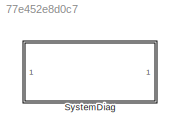
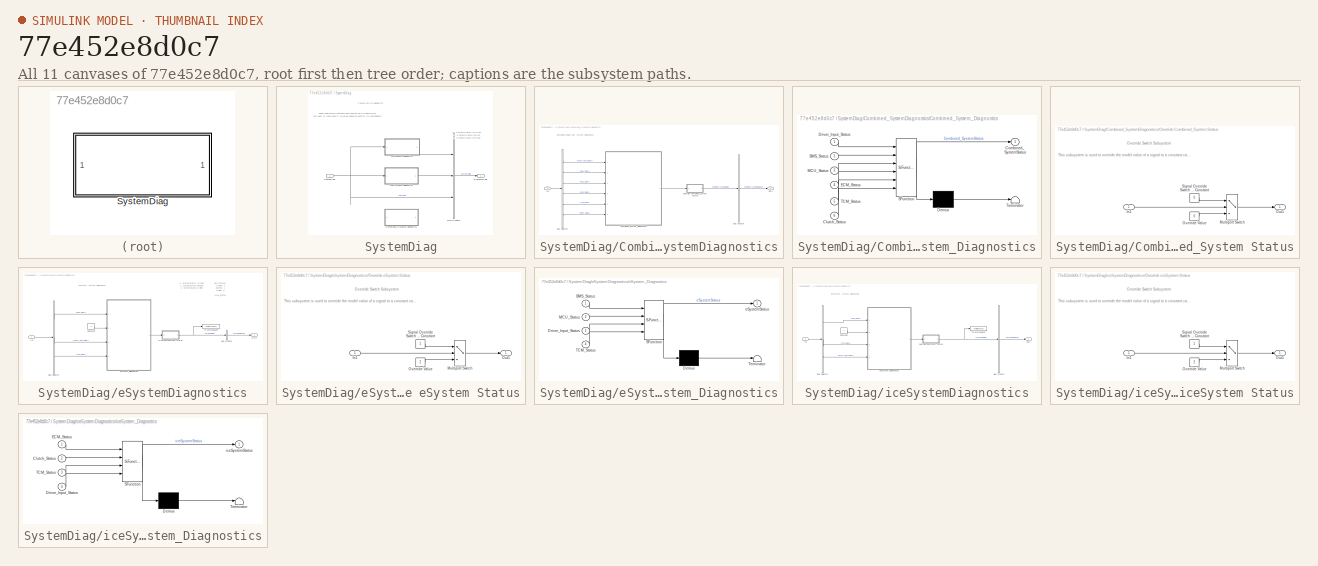
[diagram: thumbnail index - all 11 canvases of the model, root first then tree order]
MODEL slx_77e452e8d0c7
KIND library
CONFIG AbsTol = auto
CONFIG EnableMultiTasking = off
CONFIG FixedStep = auto
CONFIG MaxStep = auto
CONFIG MinStep = auto
CONFIG RelTol = 1e-3
CONFIG SampleTimeConstraint = Unconstrained
CONFIG Solver = VariableStepAuto
CONFIG SolverName = VariableStepAuto
CONFIG StartTime = 0.0
CONFIG StopTime = 10.0
BLOCK [SubSystem] SystemDiag
  Ports = [1, 1]
  RequestExecContextInheritance = off
  Variant = off
BLOCK [BusCreator] SystemDiag/Bus Creator
  DisplayOption = bar
  InheritFromInputs = on
  Inputs = 3
  Ports = [3, 1]
BLOCK [SubSystem] SystemDiag/Combined_SystemDiagnostics
  Commented = through
  Ports = [1, 1]
  RequestExecContextInheritance = off
  Variant = off
BLOCK [BusCreator] SystemDiag/Combined_SystemDiagnostics/Bus Creator
  DisplayOption = bar
  InheritFromInputs = on
  Inputs = 1
  Ports = [1, 1]
BLOCK [BusSelector] SystemDiag/Combined_SystemDiagnostics/Bus Selector
  OutputAsBus = off
  OutputSignals = Driver_Input_Status.Driver_Input_Status,BMS_Status.BMS_Status,MCU_Status.MCU_Status,ECM_Status.ECM_Status,TCM_CompDiag.TCM_Status,Clutch_Status.Clutch_Status
  Ports = [1, 6]
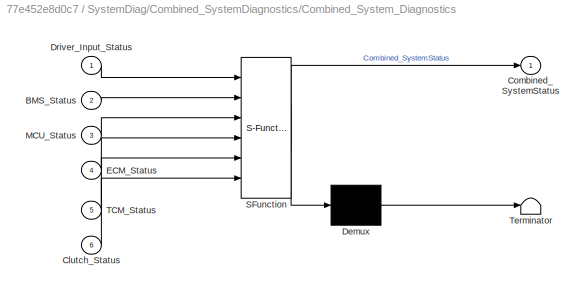
BLOCK [SubSystem] SystemDiag/Combined_SystemDiagnostics/Combined_System_Diagnostics
  ErrorFcn = Stateflow.Translate.translate
  PermitHierarchicalResolution = ExplicitOnly
  Ports = [6, 1]
  RequestExecContextInheritance = off
  SFBlockType = Chart
  TreatAsAtomicUnit = on
  Variant = off
BLOCK [Demux] SystemDiag/Combined_SystemDiagnostics/Combined_System_Diagnostics/ Demux 
  Outputs = 1
  Ports = [1, 1]
BLOCK [S-Function] SystemDiag/Combined_SystemDiagnostics/Combined_System_Diagnostics/ SFunction 
  EnableBusSupport = off
  FunctionName = sf_sfun
  PortCounts = [6 2]
  Ports = [6, 2]
  SFcnIsStateOwnerBlock = off
  SFunctionDeploymentMode = off
  Tag = Stateflow S-Function lib_SystemDiag 4
BLOCK [Terminator] SystemDiag/Combined_SystemDiagnostics/Combined_System_Diagnostics/ Terminator 
BLOCK [Inport] SystemDiag/Combined_SystemDiagnostics/Combined_System_Diagnostics/BMS_Status
  IconDisplay = Port number
  Port = 2
BLOCK [Inport] SystemDiag/Combined_SystemDiagnostics/Combined_System_Diagnostics/Clutch_Status
  IconDisplay = Port number
  Port = 6
BLOCK [Outport] SystemDiag/Combined_SystemDiagnostics/Combined_System_Diagnostics/Combined_SystemStatus
  IconDisplay = Port number
BLOCK [Inport] SystemDiag/Combined_SystemDiagnostics/Combined_System_Diagnostics/Driver_Input_Status
  IconDisplay = Port number
BLOCK [Inport] SystemDiag/Combined_SystemDiagnostics/Combined_System_Diagnostics/ECM_Status
  IconDisplay = Port number
  Port = 4
BLOCK [Inport] SystemDiag/Combined_SystemDiagnostics/Combined_System_Diagnostics/MCU_Status
  IconDisplay = Port number
  Port = 3
BLOCK [Inport] SystemDiag/Combined_SystemDiagnostics/Combined_System_Diagnostics/TCM_Status
  IconDisplay = Port number
  Port = 5
BLOCK [Inport] SystemDiag/Combined_SystemDiagnostics/In1
  IconDisplay = Port number
BLOCK [Outport] SystemDiag/Combined_SystemDiagnostics/Out1
  IconDisplay = Port number
BLOCK [SubSystem] SystemDiag/Combined_SystemDiagnostics/Override Combined_System Status
  Ports = [1, 1]
  RequestExecContextInheritance = off
  Variant = off
BLOCK [Inport] SystemDiag/Combined_SystemDiagnostics/Override Combined_System Status/In1
  IconDisplay = Port number
BLOCK [MultiPortSwitch] SystemDiag/Combined_SystemDiagnostics/Override Combined_System Status/Multiport Switch
  DataPortOrder = Zero-based contiguous
  InputSameDT = off
  Inputs = 2
  Ports = [3, 1]
  SaturateOnIntegerOverflow = off
  zeroidx = on
BLOCK [Outport] SystemDiag/Combined_SystemDiagnostics/Override Combined_System Status/Out1
  IconDisplay = Port number
BLOCK [Constant] SystemDiag/Combined_SystemDiagnostics/Override Combined_System Status/Override Value
  OutDataTypeStr = double
  Value = 0
BLOCK [Constant] SystemDiag/Combined_SystemDiagnostics/Override Combined_System Status/Signal Override Switch 0 = Use Model 1 = Use Constant
  Value = 0
BLOCK [Inport] SystemDiag/CompDiag
  IconDisplay = Port number
BLOCK [Outport] SystemDiag/SystemDiag
  IconDisplay = Port number
BLOCK [SubSystem] SystemDiag/eSystemDiagnostics
  Ports = [1, 1]
  RequestExecContextInheritance = off
  Variant = off
BLOCK [BusCreator] SystemDiag/eSystemDiagnostics/Bus Creator
  DisplayOption = bar
  InheritFromInputs = on
  Inputs = 1
  Ports = [1, 1]
BLOCK [BusSelector] SystemDiag/eSystemDiagnostics/Bus Selector
  OutputAsBus = off
  OutputSignals = BMS_Status,Driver_Input_Status,TCM_Status
  Ports = [1, 3]
BLOCK [Constant] SystemDiag/eSystemDiagnostics/Constant
  Value = 2
BLOCK [Inport] SystemDiag/eSystemDiagnostics/In1
  IconDisplay = Port number
BLOCK [Outport] SystemDiag/eSystemDiagnostics/Out1
  IconDisplay = Port number
BLOCK [SubSystem] SystemDiag/eSystemDiagnostics/Override eSystem Status
  Ports = [1, 1]
  RequestExecContextInheritance = off
  Variant = off
BLOCK [Inport] SystemDiag/eSystemDiagnostics/Override eSystem Status/In1
  IconDisplay = Port number
BLOCK [MultiPortSwitch] SystemDiag/eSystemDiagnostics/Override eSystem Status/Multiport Switch
  DataPortOrder = Zero-based contiguous
  InputSameDT = off
  Inputs = 2
  Ports = [3, 1]
  SaturateOnIntegerOverflow = off
  zeroidx = on
BLOCK [Outport] SystemDiag/eSystemDiagnostics/Override eSystem Status/Out1
  IconDisplay = Port number
BLOCK [Constant] SystemDiag/eSystemDiagnostics/Override eSystem Status/Override Value
  OutDataTypeStr = double
  Value = 2
BLOCK [Constant] SystemDiag/eSystemDiagnostics/Override eSystem Status/Signal Override Switch 0 = Use Model 1 = Use Constant
BLOCK [ToWorkspace] SystemDiag/eSystemDiagnostics/To Workspace2
  FixptAsFi = on
  MaxDataPoints = inf
  Ports = [1]
  SampleTime = -1
  Save2DSignal = 3-D array (concatenate along third dimension)
  SaveFormat = Timeseries
  VariableName = eSystemStatus
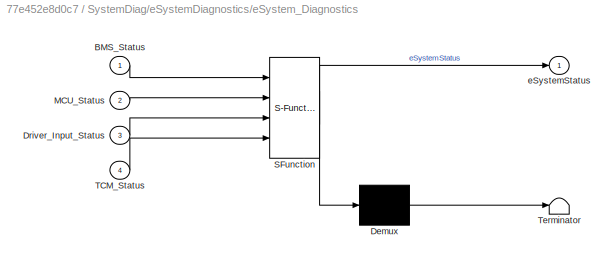
BLOCK [SubSystem] SystemDiag/eSystemDiagnostics/eSystem_Diagnostics
  ErrorFcn = Stateflow.Translate.translate
  PermitHierarchicalResolution = ExplicitOnly
  Ports = [4, 1]
  RequestExecContextInheritance = off
  SFBlockType = Chart
  TreatAsAtomicUnit = on
  Variant = off
BLOCK [Demux] SystemDiag/eSystemDiagnostics/eSystem_Diagnostics/ Demux 
  Outputs = 1
  Ports = [1, 1]
BLOCK [S-Function] SystemDiag/eSystemDiagnostics/eSystem_Diagnostics/ SFunction 
  EnableBusSupport = off
  FunctionName = sf_sfun
  PortCounts = [4 2]
  Ports = [4, 2]
  SFcnIsStateOwnerBlock = off
  SFunctionDeploymentMode = off
  Tag = Stateflow S-Function lib_SystemDiag 9
BLOCK [Terminator] SystemDiag/eSystemDiagnostics/eSystem_Diagnostics/ Terminator 
BLOCK [Inport] SystemDiag/eSystemDiagnostics/eSystem_Diagnostics/BMS_Status
  IconDisplay = Port number
BLOCK [Inport] SystemDiag/eSystemDiagnostics/eSystem_Diagnostics/Driver_Input_Status
  IconDisplay = Port number
  Port = 3
BLOCK [Inport] SystemDiag/eSystemDiagnostics/eSystem_Diagnostics/MCU_Status
  IconDisplay = Port number
  Port = 2
BLOCK [Inport] SystemDiag/eSystemDiagnostics/eSystem_Diagnostics/TCM_Status
  IconDisplay = Port number
  Port = 4
BLOCK [Outport] SystemDiag/eSystemDiagnostics/eSystem_Diagnostics/eSystemStatus
  IconDisplay = Port number
BLOCK [SubSystem] SystemDiag/iceSystemDiagnostics
  Ports = [1, 1]
  RequestExecContextInheritance = off
  Variant = off
BLOCK [BusCreator] SystemDiag/iceSystemDiagnostics/Bus Creator
  DisplayOption = bar
  InheritFromInputs = on
  Inputs = 1
  Ports = [1, 1]
BLOCK [BusSelector] SystemDiag/iceSystemDiagnostics/Bus Selector
  OutputAsBus = off
  OutputSignals = ECM_Status,TCM_Status,Driver_Input_Status
  Ports = [1, 3]
BLOCK [Constant] SystemDiag/iceSystemDiagnostics/Constant
BLOCK [Inport] SystemDiag/iceSystemDiagnostics/In1
  IconDisplay = Port number
BLOCK [Outport] SystemDiag/iceSystemDiagnostics/Out1
  IconDisplay = Port number
BLOCK [SubSystem] SystemDiag/iceSystemDiagnostics/Override iceSystem Status
  Ports = [1, 1]
  RequestExecContextInheritance = off
  Variant = off
BLOCK [Inport] SystemDiag/iceSystemDiagnostics/Override iceSystem Status/In1
  IconDisplay = Port number
BLOCK [MultiPortSwitch] SystemDiag/iceSystemDiagnostics/Override iceSystem Status/Multiport Switch
  DataPortOrder = Zero-based contiguous
  InputSameDT = off
  Inputs = 2
  Ports = [3, 1]
  SaturateOnIntegerOverflow = off
  zeroidx = on
BLOCK [Outport] SystemDiag/iceSystemDiagnostics/Override iceSystem Status/Out1
  IconDisplay = Port number
BLOCK [Constant] SystemDiag/iceSystemDiagnostics/Override iceSystem Status/Override Value
  OutDataTypeStr = double
  Value = 2
BLOCK [Constant] SystemDiag/iceSystemDiagnostics/Override iceSystem Status/Signal Override Switch 0 = Use Model 1 = Use Constant
BLOCK [ToWorkspace] SystemDiag/iceSystemDiagnostics/To Workspace2
  FixptAsFi = on
  MaxDataPoints = inf
  Ports = [1]
  SampleTime = -1
  Save2DSignal = 3-D array (concatenate along third dimension)
  SaveFormat = Timeseries
  VariableName = iceSystemStatus
BLOCK [SubSystem] SystemDiag/iceSystemDiagnostics/iceSystem_Diagnostics
  ErrorFcn = Stateflow.Translate.translate
  PermitHierarchicalResolution = ExplicitOnly
  Ports = [4, 1]
  RequestExecContextInheritance = off
  SFBlockType = Chart
  TreatAsAtomicUnit = on
  Variant = off
BLOCK [Demux] SystemDiag/iceSystemDiagnostics/iceSystem_Diagnostics/ Demux 
  Outputs = 1
  Ports = [1, 1]
BLOCK [S-Function] SystemDiag/iceSystemDiagnostics/iceSystem_Diagnostics/ SFunction 
  EnableBusSupport = off
  FunctionName = sf_sfun
  PortCounts = [4 2]
  Ports = [4, 2]
  SFcnIsStateOwnerBlock = off
  SFunctionDeploymentMode = off
  Tag = Stateflow S-Function lib_SystemDiag 12
BLOCK [Terminator] SystemDiag/iceSystemDiagnostics/iceSystem_Diagnostics/ Terminator 
BLOCK [Inport] SystemDiag/iceSystemDiagnostics/iceSystem_Diagnostics/Clutch_Status
  IconDisplay = Port number
  Port = 2
BLOCK [Inport] SystemDiag/iceSystemDiagnostics/iceSystem_Diagnostics/Driver_Input_Status
  IconDisplay = Port number
  Port = 4
BLOCK [Inport] SystemDiag/iceSystemDiagnostics/iceSystem_Diagnostics/ECM_Status
  IconDisplay = Port number
BLOCK [Inport] SystemDiag/iceSystemDiagnostics/iceSystem_Diagnostics/TCM_Status
  IconDisplay = Port number
  Port = 3
BLOCK [Outport] SystemDiag/iceSystemDiagnostics/iceSystem_Diagnostics/iceSystemStatus
  IconDisplay = Port number
ANNOTATION SystemDiag: 0: SystemStatus: Offline 1: SystemStatus Online 2: SystemStatus Limited
ANNOTATION SystemDiag: Powertrain Diagnostics
ANNOTATION SystemDiag: These subsystems evaluate each powertrain to determine the level of functionality allowed based on each of its components.
ANNOTATION SystemDiag/Combined_SystemDiagnostics: Combined_Powertrain: System Diagnostics
ANNOTATION SystemDiag/Combined_SystemDiagnostics/Override Combined_System Status: Override Switch Subsystem
ANNOTATION SystemDiag/Combined_SystemDiagnostics/Override Combined_System Status: This subsystem is used to override the model value of a signal to a constant value
ANNOTATION SystemDiag/eSystemDiagnostics: 0: SystemStatus: Offline 1: SystemStatus Limited 2: SystemStatus Online
ANNOTATION SystemDiag/eSystemDiagnostics: BMS_Status: Offline: 0 Limited: 1 Online: 2 MCU_Status Offline: 0 Limited: 1 Online :2
ANNOTATION SystemDiag/eSystemDiagnostics: eSystem: System Diagnostics
ANNOTATION SystemDiag/eSystemDiagnostics/Override eSystem Status: Override Switch Subsystem
ANNOTATION SystemDiag/eSystemDiagnostics/Override eSystem Status: This subsystem is used to override the model value of a signal to a constant value
ANNOTATION SystemDiag/iceSystemDiagnostics: iceSystem: System Diagnostics
ANNOTATION SystemDiag/iceSystemDiagnostics/Override iceSystem Status: Override Switch Subsystem
ANNOTATION SystemDiag/iceSystemDiagnostics/Override iceSystem Status: This subsystem is used to override the model value of a signal to a constant value
LINE SystemDiag/Bus Creator:1 -> SystemDiag/SystemDiag:1
LINE SystemDiag/Combined_SystemDiagnostics/Bus Creator:1 -> SystemDiag/Combined_SystemDiagnostics/Out1:1
LINE SystemDiag/Combined_SystemDiagnostics/Bus Selector:1 -> SystemDiag/Combined_SystemDiagnostics/Combined_System_Diagnostics:1
LINE SystemDiag/Combined_SystemDiagnostics/Bus Selector:2 -> SystemDiag/Combined_SystemDiagnostics/Combined_System_Diagnostics:2
LINE SystemDiag/Combined_SystemDiagnostics/Bus Selector:3 -> SystemDiag/Combined_SystemDiagnostics/Combined_System_Diagnostics:3
LINE SystemDiag/Combined_SystemDiagnostics/Bus Selector:4 -> SystemDiag/Combined_SystemDiagnostics/Combined_System_Diagnostics:4
LINE SystemDiag/Combined_SystemDiagnostics/Bus Selector:5 -> SystemDiag/Combined_SystemDiagnostics/Combined_System_Diagnostics:5
LINE SystemDiag/Combined_SystemDiagnostics/Bus Selector:6 -> SystemDiag/Combined_SystemDiagnostics/Combined_System_Diagnostics:6
LINE SystemDiag/Combined_SystemDiagnostics/Combined_System_Diagnostics:1 -> SystemDiag/Combined_SystemDiagnostics/Override Combined_System Status:1
LINE SystemDiag/Combined_SystemDiagnostics/In1:1 -> SystemDiag/Combined_SystemDiagnostics/Bus Selector:1
LINE SystemDiag/Combined_SystemDiagnostics/Override Combined_System Status/In1:1 -> SystemDiag/Combined_SystemDiagnostics/Override Combined_System Status/Multiport Switch:2
LINE SystemDiag/Combined_SystemDiagnostics/Override Combined_System Status/Multiport Switch:1 -> SystemDiag/Combined_SystemDiagnostics/Override Combined_System Status/Out1:1
LINE SystemDiag/Combined_SystemDiagnostics/Override Combined_System Status/Override Value:1 -> SystemDiag/Combined_SystemDiagnostics/Override Combined_System Status/Multiport Switch:3
LINE SystemDiag/Combined_SystemDiagnostics/Override Combined_System Status/Signal Override Switch 0 = Use Model 1 = Use Constant:1 -> SystemDiag/Combined_SystemDiagnostics/Override Combined_System Status/Multiport Switch:1
LINE SystemDiag/Combined_SystemDiagnostics/Override Combined_System Status:1 -> SystemDiag/Combined_SystemDiagnostics/Bus Creator:1
NET SystemDiag/CompDiag:1 -> SystemDiag/Bus Creator:3, SystemDiag/eSystemDiagnostics:1, SystemDiag/iceSystemDiagnostics:1
LINE SystemDiag/eSystemDiagnostics/Bus Creator:1 -> SystemDiag/eSystemDiagnostics/Out1:1
LINE SystemDiag/eSystemDiagnostics/Bus Selector:1 -> SystemDiag/eSystemDiagnostics/eSystem_Diagnostics:1
LINE SystemDiag/eSystemDiagnostics/Bus Selector:2 -> SystemDiag/eSystemDiagnostics/eSystem_Diagnostics:3
LINE SystemDiag/eSystemDiagnostics/Bus Selector:3 -> SystemDiag/eSystemDiagnostics/eSystem_Diagnostics:4
LINE SystemDiag/eSystemDiagnostics/Constant:1 -> SystemDiag/eSystemDiagnostics/eSystem_Diagnostics:2
LINE SystemDiag/eSystemDiagnostics/In1:1 -> SystemDiag/eSystemDiagnostics/Bus Selector:1
LINE SystemDiag/eSystemDiagnostics/Override eSystem Status/In1:1 -> SystemDiag/eSystemDiagnostics/Override eSystem Status/Multiport Switch:2
LINE SystemDiag/eSystemDiagnostics/Override eSystem Status/Multiport Switch:1 -> SystemDiag/eSystemDiagnostics/Override eSystem Status/Out1:1
LINE SystemDiag/eSystemDiagnostics/Override eSystem Status/Override Value:1 -> SystemDiag/eSystemDiagnostics/Override eSystem Status/Multiport Switch:3
LINE SystemDiag/eSystemDiagnostics/Override eSystem Status/Signal Override Switch 0 = Use Model 1 = Use Constant:1 -> SystemDiag/eSystemDiagnostics/Override eSystem Status/Multiport Switch:1
NET SystemDiag/eSystemDiagnostics/Override eSystem Status:1 -> SystemDiag/eSystemDiagnostics/Bus Creator:1, SystemDiag/eSystemDiagnostics/To Workspace2:1
LINE SystemDiag/eSystemDiagnostics/eSystem_Diagnostics:1 -> SystemDiag/eSystemDiagnostics/Override eSystem Status:1
LINE SystemDiag/eSystemDiagnostics:1 -> SystemDiag/Bus Creator:1
LINE SystemDiag/iceSystemDiagnostics/Bus Creator:1 -> SystemDiag/iceSystemDiagnostics/Out1:1
LINE SystemDiag/iceSystemDiagnostics/Bus Selector:1 -> SystemDiag/iceSystemDiagnostics/iceSystem_Diagnostics:1
LINE SystemDiag/iceSystemDiagnostics/Bus Selector:2 -> SystemDiag/iceSystemDiagnostics/iceSystem_Diagnostics:3
LINE SystemDiag/iceSystemDiagnostics/Bus Selector:3 -> SystemDiag/iceSystemDiagnostics/iceSystem_Diagnostics:4
LINE SystemDiag/iceSystemDiagnostics/Constant:1 -> SystemDiag/iceSystemDiagnostics/iceSystem_Diagnostics:2
LINE SystemDiag/iceSystemDiagnostics/In1:1 -> SystemDiag/iceSystemDiagnostics/Bus Selector:1
LINE SystemDiag/iceSystemDiagnostics/Override iceSystem Status/In1:1 -> SystemDiag/iceSystemDiagnostics/Override iceSystem Status/Multiport Switch:2
LINE SystemDiag/iceSystemDiagnostics/Override iceSystem Status/Multiport Switch:1 -> SystemDiag/iceSystemDiagnostics/Override iceSystem Status/Out1:1
LINE SystemDiag/iceSystemDiagnostics/Override iceSystem Status/Override Value:1 -> SystemDiag/iceSystemDiagnostics/Override iceSystem Status/Multiport Switch:3
LINE SystemDiag/iceSystemDiagnostics/Override iceSystem Status/Signal Override Switch 0 = Use Model 1 = Use Constant:1 -> SystemDiag/iceSystemDiagnostics/Override iceSystem Status/Multiport Switch:1
NET SystemDiag/iceSystemDiagnostics/Override iceSystem Status:1 -> SystemDiag/iceSystemDiagnostics/Bus Creator:1, SystemDiag/iceSystemDiagnostics/To Workspace2:1
LINE SystemDiag/iceSystemDiagnostics/iceSystem_Diagnostics:1 -> SystemDiag/iceSystemDiagnostics/Override iceSystem Status:1
LINE SystemDiag/iceSystemDiagnostics:1 -> SystemDiag/Bus Creator:2
note: NET lines group one-source signal fan-out (src -> all destinations, sorted); 1:1 wires keep LINE
CHART SystemDiag/Combined_SystemDiagnostics/Combined_System_Diagnostics states=3 transitions=7
  STATE_LABEL 'CombinedSystem_Online\nen: Combined_SystemStatus=2'
  STATE_LABEL 'Combined_System_Offline\nen:Combined_SystemStatus=0'
  STATE_LABEL 'Combined_System_Limited\nen: Combined_SystemStatus=1'
CHART SystemDiag/eSystemDiagnostics/eSystem_Diagnostics states=3 transitions=7
  STATE_LABEL 'eSystem_Offline\nen:eSystemStatus=0;'
  STATE_LABEL 'eSystem_Online\nen: eSystemStatus=2;'
  STATE_LABEL 'eSystem_Limited\nen: eSystemStatus=1;'
CHART SystemDiag/iceSystemDiagnostics/iceSystem_Diagnostics states=3 transitions=7
  STATE_LABEL 'iceSystem_Online\nen: iceSystemStatus=2;'
  STATE_LABEL 'iceSystem_Offline\nen:iceSystemStatus=0;'
  STATE_LABEL 'iceSystem_Limited\nen: iceSystemStatus=1;'
